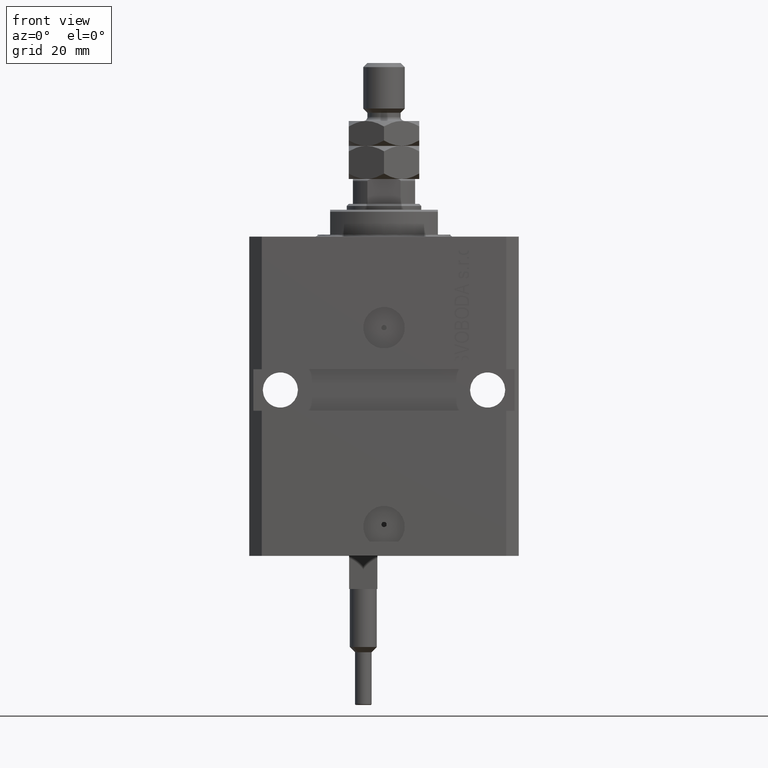
[diagram: clean part render]
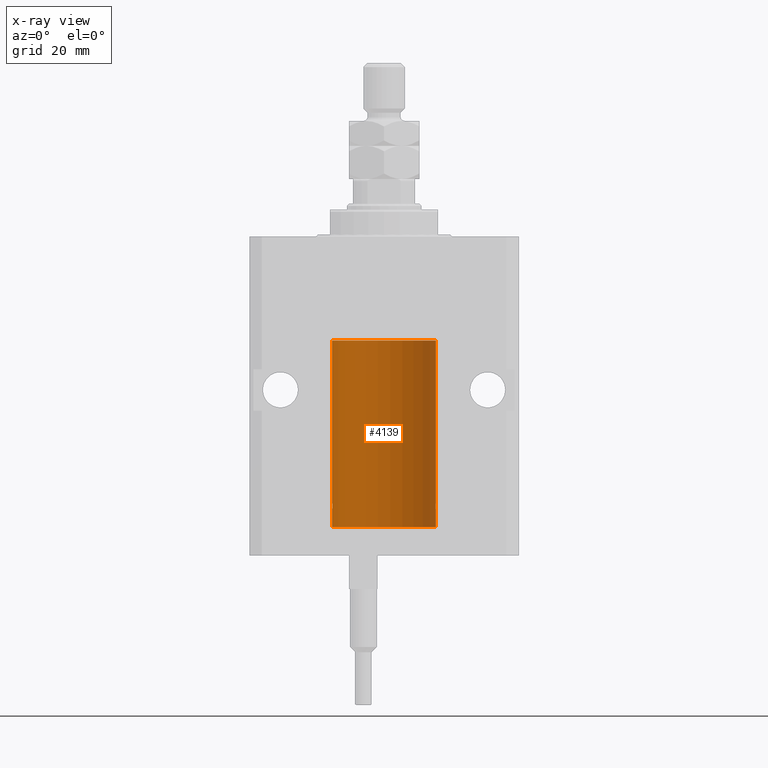
[diagram: x-ray — body ghosted, one internal face saturated and labeled with its STEP entity id]
A machine part, front view, then the same camera in x-ray: the body is ghosted and one INTERNAL B-rep face — a face not visible from any outside direction — is saturated and labeled: STEP entity #4139.
In plain terms, the highlighted cylindrical surface (partial cylindrical patch) has radius 12.5 mm, axis along (0, 0, 1).
Its self-contained STEP definition (entity closure, byte-faithful):
#295 = EDGE_CURVE ( 'NONE', #19764, #31816, #46100, .T. ) ;
#542 = ORIENTED_EDGE ( 'NONE', *, *, #25835, .T. ) ;
#1114 = CARTESIAN_POINT ( 'NONE',  ( 12.49625698805481022, 0.3151108292486944906, -65.54593695688173227 ) ) ;
#1383 = CIRCLE ( 'NONE', #4633, 12.50000000000000000 ) ;
#1456 = LINE ( 'NONE', #17145, #38726 ) ;
#1672 = EDGE_CURVE ( 'NONE', #19764, #39915, #40834, .T. ) ;
#2616 = EDGE_CURVE ( 'NONE', #10191, #49875, #31833, .T. ) ;
#2617 = CARTESIAN_POINT ( 'NONE',  ( -12.48809959379011580, 0.5462151254764967545, -65.31461370481615347 ) ) ;
#2872 = DIRECTION ( 'NONE',  ( 1.000000000000000000, 0.000000000000000000, 0.000000000000000000 ) ) ;
#3248 = ORIENTED_EDGE ( 'NONE', *, *, #30772, .T. ) ;
#3936 = FACE_OUTER_BOUND ( 'NONE', #7692, .T. ) ;
#4139 = ADVANCED_FACE ( 'NONE', ( #3936 ), #15332, .F. ) ;
#4633 = AXIS2_PLACEMENT_3D ( 'NONE', #41759, #22034, #30615 ) ;
#4820 = CARTESIAN_POINT ( 'NONE',  ( 12.50000000000000000, 0.000000000000000000, -70.09999999999999432 ) ) ;
#4865 = VERTEX_POINT ( 'NONE', #23545 ) ;
#6196 = VERTEX_POINT ( 'NONE', #25252 ) ;
#6662 = CARTESIAN_POINT ( 'NONE',  ( -12.49999999999999645, 0.08260426088728482774, -64.37499999999998579 ) ) ;
#7692 = EDGE_LOOP ( 'NONE', ( #12375, #8227, #27656, #30344, #3248, #542, #48508, #21268, #49300 ) ) ;
#8227 = ORIENTED_EDGE ( 'NONE', *, *, #31312, .F. ) ;
#9719 = DIRECTION ( 'NONE',  ( 0.000000000000000000, 0.000000000000000000, 1.000000000000000000 ) ) ;
#10010 = B_SPLINE_CURVE_WITH_KNOTS ( 'NONE', 3,
 ( #18348, #17363, #14072, #10517, #18108, #48498, #41143, #10266 ),
 .UNSPECIFIED., .F., .F.,
 ( 4, 2, 2, 4 ),
 ( 0.0009773924225142606621, 0.001221629287363811033, 0.001465866152213361404, 0.001954339881912461711 ),
 .UNSPECIFIED. ) ;
#10191 = VERTEX_POINT ( 'NONE', #24904 ) ;
#10213 = CARTESIAN_POINT ( 'NONE',  ( -12.50000000000000000, -1.050566418211748297E-14, -64.37500000000000000 ) ) ;
#10266 = CARTESIAN_POINT ( 'NONE',  ( 12.50000000000017941, 3.868073689162038701E-13, -64.37499999999640465 ) ) ;
#10517 = CARTESIAN_POINT ( 'NONE',  ( 12.48810305280568222, 0.5461368461738485003, -64.68525466142676805 ) ) ;
#10810 = CARTESIAN_POINT ( 'NONE',  ( 12.50000000000000000, 0.000000000000000000, -25.10000000000000142 ) ) ;
#10885 = VECTOR ( 'NONE', #32444, 1000.000000000000000 ) ;
#11045 = EDGE_CURVE ( 'NONE', #6196, #39915, #1456, .T. ) ;
#11174 = DIRECTION ( 'NONE',  ( -0.000000000000000000, -0.000000000000000000, 1.000000000000000000 ) ) ;
#12375 = ORIENTED_EDGE ( 'NONE', *, *, #11045, .F. ) ;
#12704 = CARTESIAN_POINT ( 'NONE',  ( 12.50000000000000000, 0.000000000000000000, -70.09999999999999432 ) ) ;
#12980 = EDGE_CURVE ( 'NONE', #49359, #10191, #32657, .T. ) ;
#13064 = CARTESIAN_POINT ( 'NONE',  ( -12.50000000000017941, 3.883381774819353300E-13, -65.62500000000359535 ) ) ;
#14072 = CARTESIAN_POINT ( 'NONE',  ( 12.48520578595314845, 0.6087855079133740466, -64.83656717509344958 ) ) ;
#15332 = CYLINDRICAL_SURFACE ( 'NONE', #22278, 12.50000000000000000 ) ;
#16966 = DIRECTION ( 'NONE',  ( -0.000000000000000000, -0.000000000000000000, 1.000000000000000000 ) ) ;
#17145 = CARTESIAN_POINT ( 'NONE',  ( -12.50000000000000000, 1.530808498934191127E-15, -70.09999999999999432 ) ) ;
#17363 = CARTESIAN_POINT ( 'NONE',  ( 12.48436522214888100, 0.6249999999996834754, -64.91847339462351840 ) ) ;
#17511 = LINE ( 'NONE', #24845, #10885 ) ;
#17558 = CARTESIAN_POINT ( 'NONE',  ( -12.48810268015257741, 0.5573155909661291485, -64.67347410093869087 ) ) ;
#18049 = CARTESIAN_POINT ( 'NONE',  ( -12.49631005746706158, 0.3253680783018496059, -65.55856740465392818 ) ) ;
#18108 = CARTESIAN_POINT ( 'NONE',  ( 12.49012055744648997, 0.5002956126656082914, -64.61641710202404454 ) ) ;
#18348 = CARTESIAN_POINT ( 'NONE',  ( 12.48436522214846711, 0.6250000000078848039, -64.99999999999923261 ) ) ;
#19533 = EDGE_CURVE ( 'NONE', #38668, #31816, #45424, .T. ) ;
#19764 = VERTEX_POINT ( 'NONE', #37905 ) ;
#20608 = CARTESIAN_POINT ( 'NONE',  ( 12.48809900631782099, 0.5573988467445673001, -65.32640147935475738 ) ) ;
#21268 = ORIENTED_EDGE ( 'NONE', *, *, #295, .F. ) ;
#21606 = CARTESIAN_POINT ( 'NONE',  ( 0.000000000000000000, 0.000000000000000000, -25.10000000000000142 ) ) ;
#22034 = DIRECTION ( 'NONE',  ( 0.000000000000000000, 0.000000000000000000, 1.000000000000000000 ) ) ;
#22090 = CARTESIAN_POINT ( 'NONE',  ( -12.48520330846398174, 0.6088355886774118320, -65.16325431852561678 ) ) ;
#22278 = AXIS2_PLACEMENT_3D ( 'NONE', #38602, #42404, #38100 ) ;
#23545 = CARTESIAN_POINT ( 'NONE',  ( 12.50000000000017941, 3.868073689162038701E-13, -64.37499999999640465 ) ) ;
#24648 = CARTESIAN_POINT ( 'NONE',  ( 12.48436522214885969, 0.6250000000001505462, -65.16312747540307271 ) ) ;
#24736 = DIRECTION ( 'NONE',  ( -0.000000000000000000, -0.000000000000000000, 1.000000000000000000 ) ) ;
#24845 = CARTESIAN_POINT ( 'NONE',  ( 12.50000000000000000, 0.000000000000000000, -70.09999999999999432 ) ) ;
#24904 = CARTESIAN_POINT ( 'NONE',  ( 12.50000000000000000, -1.836039810331332019E-15, -65.62500000000000000 ) ) ;
#25252 = CARTESIAN_POINT ( 'NONE',  ( -12.50000000000000000, 1.530808498934191127E-15, -70.09999999999999432 ) ) ;
#25385 = CARTESIAN_POINT ( 'NONE',  ( -12.48436813453758454, 0.6249418250771179295, -64.83668996798921569 ) ) ;
#25835 = EDGE_CURVE ( 'NONE', #4865, #38668, #17511, .T. ) ;
#25884 = CARTESIAN_POINT ( 'NONE',  ( -12.48436376893640087, 0.6250290278979918623, -65.08132082824472775 ) ) ;
#27656 = ORIENTED_EDGE ( 'NONE', *, *, #12980, .T. ) ;
#29177 = CARTESIAN_POINT ( 'NONE',  ( -12.49915784441386890, 0.1636601911727942615, -64.39126818989430490 ) ) ;
#30175 = CARTESIAN_POINT ( 'NONE',  ( -12.49999999999999289, 0.1631761135151231223, -65.62499999999984368 ) ) ;
#30344 = ORIENTED_EDGE ( 'NONE', *, *, #2616, .T. ) ;
#30615 = DIRECTION ( 'NONE',  ( 1.000000000000000000, 0.000000000000000000, 0.000000000000000000 ) ) ;
#30656 = CARTESIAN_POINT ( 'NONE',  ( -12.50000000000000000, 1.530808498934191127E-15, -70.09999999999999432 ) ) ;
#30772 = EDGE_CURVE ( 'NONE', #49875, #4865, #10010, .T. ) ;
#31312 = EDGE_CURVE ( 'NONE', #49359, #6196, #1383, .T. ) ;
#31816 = VERTEX_POINT ( 'NONE', #33207 ) ;
#31833 = B_SPLINE_CURVE_WITH_KNOTS ( 'NONE', 3,
 ( #38820, #48201, #36541, #1114, #36030, #20608, #24648, #40086 ),
 .UNSPECIFIED., .F., .F.,
 ( 4, 2, 2, 4 ),
 ( 1.784246692340212412E-18, 0.0002443481056285665750, 0.0004886962112571313068, 0.0009773924225142606621 ),
 .UNSPECIFIED. ) ;
#32444 = DIRECTION ( 'NONE',  ( -0.000000000000000000, -0.000000000000000000, 1.000000000000000000 ) ) ;
#32657 = LINE ( 'NONE', #4820, #48561 ) ;
#33207 = CARTESIAN_POINT ( 'NONE',  ( -12.50000000000000000, 1.530808498934191127E-15, -25.10000000000000142 ) ) ;
#33236 = CARTESIAN_POINT ( 'NONE',  ( -12.50000000000017941, 3.883381774819353300E-13, -65.62500000000359535 ) ) ;
#34857 = CARTESIAN_POINT ( 'NONE',  ( 12.48436522214846711, 0.6250000000078848039, -64.99999999999923261 ) ) ;
#36030 = CARTESIAN_POINT ( 'NONE',  ( 12.49421963472024721, 0.3844519291903572555, -65.49947303647046226 ) ) ;
#36541 = CARTESIAN_POINT ( 'NONE',  ( 12.49915742890631876, 0.1636982395582385896, -65.60872397847025184 ) ) ;
#37764 = CARTESIAN_POINT ( 'NONE',  ( -12.49422197749724539, 0.3843754434364305972, -64.50047099568097053 ) ) ;
#37905 = CARTESIAN_POINT ( 'NONE',  ( -12.50000000000000000, -1.050566418211748297E-14, -64.37500000000000000 ) ) ;
#38100 = DIRECTION ( 'NONE',  ( 1.000000000000000000, 0.000000000000000000, 0.000000000000000000 ) ) ;
#38602 = CARTESIAN_POINT ( 'NONE',  ( 0.000000000000000000, 0.000000000000000000, -70.09999999999999432 ) ) ;
#38668 = VERTEX_POINT ( 'NONE', #10810 ) ;
#38726 = VECTOR ( 'NONE', #24736, 1000.000000000000000 ) ;
#38820 = CARTESIAN_POINT ( 'NONE',  ( 12.50000000000000000, -1.836039810331332019E-15, -65.62500000000000000 ) ) ;
#39915 = VERTEX_POINT ( 'NONE', #13064 ) ;
#40086 = CARTESIAN_POINT ( 'NONE',  ( 12.48436522214846711, 0.6250000000078848039, -64.99999999999923261 ) ) ;
#40834 = B_SPLINE_CURVE_WITH_KNOTS ( 'NONE', 3,
 ( #10213, #6662, #29177, #49419, #37764, #17558, #25385, #25884, #22090, #2617, #48438, #18049, #30175, #33236 ),
 .UNSPECIFIED., .F., .F.,
 ( 4, 2, 2, 2, 2, 2, 4 ),
 ( 3.452213508042194616E-18, 0.0002442924852390797774, 0.0004885849704781561938, 0.0009771699409563384085, 0.001221462426195450224, 0.001465754911434562040, 0.001954339881912785671 ),
 .UNSPECIFIED. ) ;
#41143 = CARTESIAN_POINT ( 'NONE',  ( 12.49999999999999822, 0.1631389616600901760, -64.37500000000022737 ) ) ;
#41759 = CARTESIAN_POINT ( 'NONE',  ( 0.000000000000000000, 0.000000000000000000, -70.09999999999999432 ) ) ;
#42166 = AXIS2_PLACEMENT_3D ( 'NONE', #21606, #9719, #2872 ) ;
#42404 = DIRECTION ( 'NONE',  ( -0.000000000000000000, -0.000000000000000000, 1.000000000000000000 ) ) ;
#44771 = VECTOR ( 'NONE', #11174, 1000.000000000000000 ) ;
#45424 = CIRCLE ( 'NONE', #42166, 12.50000000000000000 ) ;
#46100 = LINE ( 'NONE', #30656, #44771 ) ;
#48201 = CARTESIAN_POINT ( 'NONE',  ( 12.49999999999999822, 0.08262306818362624705, -65.62500000000000000 ) ) ;
#48438 = CARTESIAN_POINT ( 'NONE',  ( -12.49011732893843707, 0.5003763274120244242, -65.38348111289288056 ) ) ;
#48498 = CARTESIAN_POINT ( 'NONE',  ( 12.49631206032076136, 0.3252904079142934779, -64.44139700214927302 ) ) ;
#48508 = ORIENTED_EDGE ( 'NONE', *, *, #19533, .T. ) ;
#48561 = VECTOR ( 'NONE', #16966, 1000.000000000000000 ) ;
#49300 = ORIENTED_EDGE ( 'NONE', *, *, #1672, .T. ) ;
#49359 = VERTEX_POINT ( 'NONE', #12704 ) ;
#49419 = CARTESIAN_POINT ( 'NONE',  ( -12.49625855304193855, 0.3150454781038045660, -64.45402800297485157 ) ) ;
#49875 = VERTEX_POINT ( 'NONE', #34857 ) ;